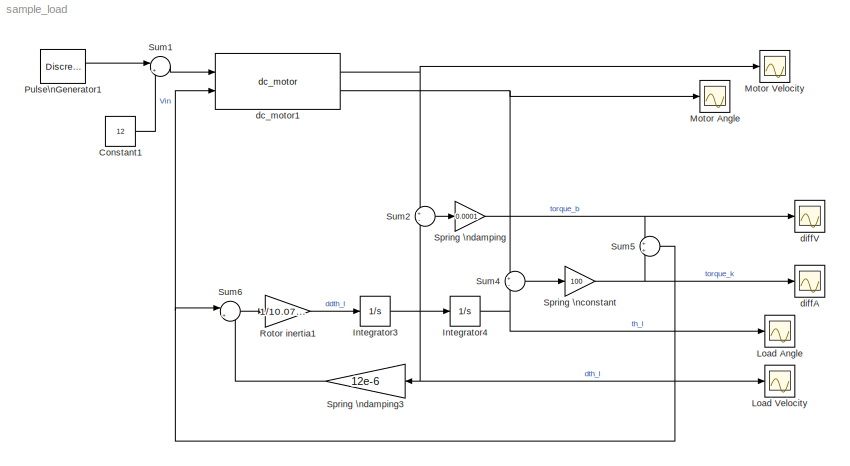
MODEL sample_load
KIND model
BLOCK [Constant] Constant1
  ConRadixGroup = Use specified scaling
  FramePeriod = inf
  OutDataType = sfix(16)
  OutDataTypeMode = Inherit from 'Constant value'
  OutScaling = 2^0
  SampleTime = inf
  SamplingMode = Sample based
  Value = 12
  VectorParams1D = on
BLOCK [Integrator] Integrator3
  IgnoreLimit = off
  Ports = [1, 1]
BLOCK [Integrator] Integrator4
  IgnoreLimit = off
  Ports = [1, 1]
BLOCK [Scope] Load Angle
  DataFormat = StructureWithTime
  Floating = off
  LimitDataPoints = off
  NumInputPorts = 1
  Ports = [1]
  SampleTime = 0
  SaveName = ScopeData2
BLOCK [Scope] Load Velocity
  DataFormat = StructureWithTime
  Floating = off
  LimitDataPoints = off
  NumInputPorts = 1
  Ports = [1]
  SampleTime = 0
  SaveName = ScopeData1
BLOCK [Scope] Motor Angle
  DataFormat = StructureWithTime
  Floating = off
  LimitDataPoints = off
  NumInputPorts = 1
  Ports = [1]
  SampleTime = 0
BLOCK [Scope] Motor Velocity
  DataFormat = StructureWithTime
  Floating = off
  LimitDataPoints = off
  NumInputPorts = 1
  Ports = [1]
  SampleTime = 0
  SaveName = ScopeData4
BLOCK [DiscretePulseGenerator] Pulse\nGenerator1
  Amplitude = 24
  Period = 10
  Ports = [0, 1]
  PulseType = Time based
  PulseWidth = 50
BLOCK [Gain] Rotor inertia1
  Gain = 1/10.07e-6
  OutDataTypeMode = Inherit via internal rule
  ParameterDataTypeMode = Inherit via internal rule
  SaturateOnIntegerOverflow = off
BLOCK [Gain] Spring \nconstant
  Gain = 100
  OutDataTypeMode = Inherit via internal rule
  ParameterDataTypeMode = Inherit via internal rule
  SaturateOnIntegerOverflow = off
BLOCK [Gain] Spring \ndamping
  Gain = 0.0001
  OutDataTypeMode = Inherit via internal rule
  ParameterDataTypeMode = Inherit via internal rule
  SaturateOnIntegerOverflow = off
BLOCK [Gain] Spring \ndamping3
  Gain = 12e-6
  OutDataTypeMode = Inherit via internal rule
  ParameterDataTypeMode = Inherit via internal rule
  SaturateOnIntegerOverflow = off
BLOCK [Sum] Sum1
  IconShape = round
  InputSameDT = off
  Inputs = |+-
  OutDataTypeMode = Inherit via internal rule
  Ports = [2, 1]
  SaturateOnIntegerOverflow = off
BLOCK [Sum] Sum2
  IconShape = round
  InputSameDT = off
  Inputs = +-
  OutDataTypeMode = Inherit via internal rule
  Ports = [2, 1]
  SaturateOnIntegerOverflow = off
BLOCK [Sum] Sum4
  IconShape = round
  InputSameDT = off
  Inputs = +-
  OutDataTypeMode = Inherit via internal rule
  Ports = [2, 1]
  SaturateOnIntegerOverflow = off
BLOCK [Sum] Sum5
  IconShape = round
  InputSameDT = off
  OutDataTypeMode = Inherit via internal rule
  Ports = [2, 1]
  SaturateOnIntegerOverflow = off
BLOCK [Sum] Sum6
  IconShape = round
  InputSameDT = off
  Inputs = |+-
  OutDataTypeMode = Inherit via internal rule
  Ports = [2, 1]
  SaturateOnIntegerOverflow = off
BLOCK [Reference] dc_motor1  REF=dc_motor_lib/dc_motor  (lib defined in mdl_47a98f9b099e)
  FunctionWithSeparateData = off
  Jm = 1.07e-6
  Kb = 1/((406*2*pi)/60)
  Kt = 0.0235
  Lm = 0.000238
  Ports = [2, 2]
  RTWMemSecDataConstants = Inherit from model
  RTWMemSecDataInternal = Inherit from model
  RTWMemSecDataParameters = Inherit from model
  RTWMemSecFuncExecute = Inherit from model
  RTWMemSecFuncInitTerm = Inherit from model
  Rm = 2.06
  ShowPortLabels = on
  SourceBlock = dc_motor_lib/dc_motor
  SystemSampleTime = -1
  bm = 12e-7
BLOCK [Scope] diffA
  DataFormat = StructureWithTime
  Floating = off
  LimitDataPoints = off
  NumInputPorts = 1
  Ports = [1]
  SampleTime = 0
  SaveName = ScopeData5
BLOCK [Scope] diffV
  DataFormat = StructureWithTime
  Floating = off
  LimitDataPoints = off
  NumInputPorts = 1
  Ports = [1]
  SampleTime = 0
  SaveName = ScopeData3
LINE Constant1:1 -> Sum1:2
NET Integrator3:1 -> Integrator4:1, Load Velocity:1, Spring \ndamping3:1, Sum2:2
NET Integrator4:1 -> Load Angle:1, Sum4:2
LINE Pulse\nGenerator1:1 -> Sum1:1
LINE Rotor inertia1:1 -> Integrator3:1
NET Spring \nconstant:1 -> Sum5:2, diffA:1
LINE Spring \ndamping3:1 -> Sum6:2
NET Spring \ndamping:1 -> Sum5:1, diffV:1
LINE Sum1:1 -> dc_motor1:1
LINE Sum2:1 -> Spring \ndamping:1
LINE Sum4:1 -> Spring \nconstant:1
NET Sum5:1 -> Sum6:1, dc_motor1:2
LINE Sum6:1 -> Rotor inertia1:1
NET dc_motor1:1 -> Motor Velocity:1, Sum2:1
NET dc_motor1:2 -> Motor Angle:1, Sum4:1
note: NET lines group one-source signal fan-out (src -> all destinations, sorted); 1:1 wires keep LINE
